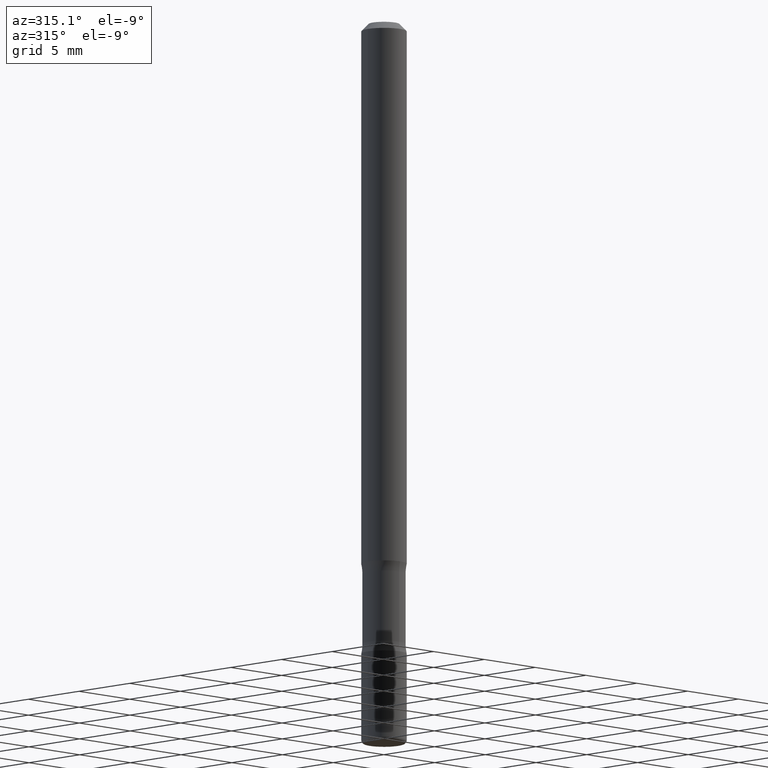
[diagram: clean part render]
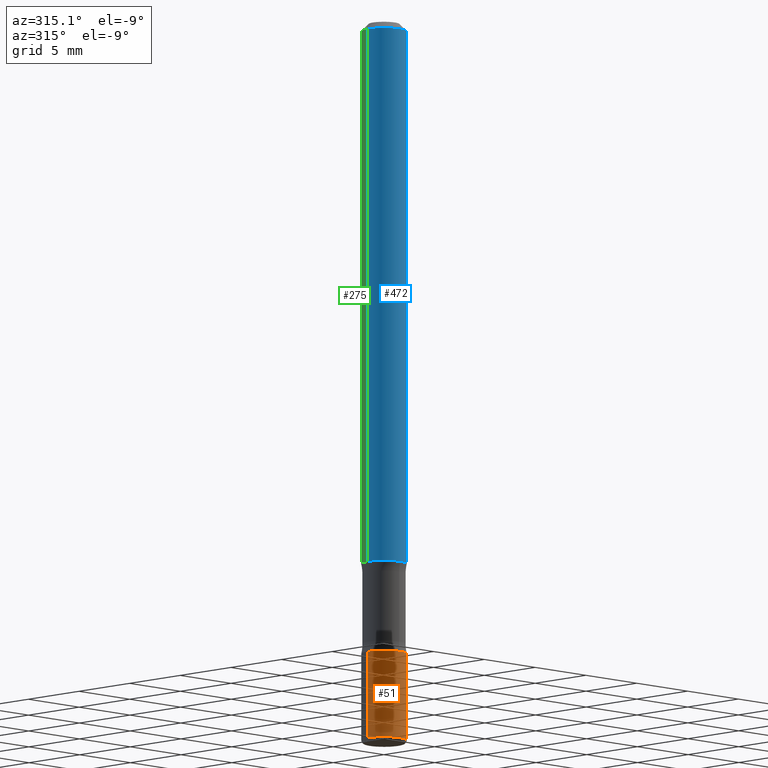
[diagram: same view with three faces highlighted in distinct colors, each labeled with its STEP entity id]
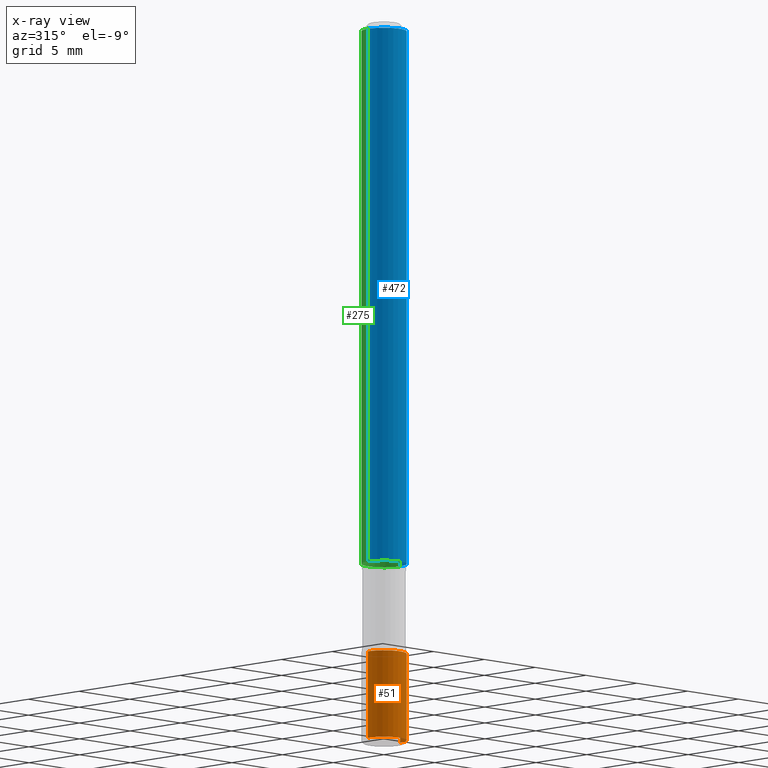
[diagram: x-ray of the same camera — body ghosted, the three highlighted faces saturated]
A machine part, auxiliary view with three faces highlighted in distinct colors.
The next image is the same camera in x-ray (body ghosted, the three faces saturated) — at least one of them is partly hidden behind the body in this view.
Their STEP definitions:

[orange] entity #51 — the highlighted cylindrical surface (edge-blend (fillet) strip) has radius 1.5875 mm, axis along (-0, 0, 1).
#3 = CARTESIAN_POINT ( 'NONE',  ( -0.06250000000000076328, 4.440892098500680396E-16, -3.074334431409353598E-30 ) ) ;
#4 = VECTOR ( 'NONE', #7, 39.37007874015748143 ) ;
#7 = DIRECTION ( 'NONE',  ( -2.445468806185136877E-29, 3.491481338843145188E-15, 1.000000000000000000 ) ) ;
#9 = ORIENTED_EDGE ( 'NONE', *, *, #62, .F. ) ;
#42 = CYLINDRICAL_SURFACE ( 'NONE', #164, 0.06250000000000076328 ) ;
#45 = DIRECTION ( 'NONE',  ( -2.445468806185136597E-29, 3.491481338843145583E-15, 1.000000000000000000 ) ) ;
#51 = ADVANCED_FACE ( 'NONE', ( #134 ), #42, .T. ) ;
#62 = EDGE_CURVE ( 'NONE', #88, #103, #148, .T. ) ;
#73 = DIRECTION ( 'NONE',  ( 1.000000000000000000, -6.982962677686270655E-15, 0.000000000000000000 ) ) ;
#87 = LINE ( 'NONE', #3, #4 ) ;
#88 = VERTEX_POINT ( 'NONE', #523 ) ;
#103 = VERTEX_POINT ( 'NONE', #389 ) ;
#128 = ORIENTED_EDGE ( 'NONE', *, *, #507, .T. ) ;
#134 = FACE_OUTER_BOUND ( 'NONE', #429, .T. ) ;
#148 = CIRCLE ( 'NONE', #162, 0.06250000000000062450 ) ;
#162 = AXIS2_PLACEMENT_3D ( 'NONE', #224, #45, #306 ) ;
#164 = AXIS2_PLACEMENT_3D ( 'NONE', #300, #519, #440 ) ;
#185 = EDGE_CURVE ( 'NONE', #347, #479, #518, .T. ) ;
#223 = CARTESIAN_POINT ( 'NONE',  ( 0.06250000000000076328, -4.364351673553969942E-16, 3.047610484872497355E-30 ) ) ;
#224 = CARTESIAN_POINT ( 'NONE',  ( 4.279570410823987363E-29, -6.110092342975501516E-15, -1.749999999999999112 ) ) ;
#282 = AXIS2_PLACEMENT_3D ( 'NONE', #412, #361, #73 ) ;
#300 = CARTESIAN_POINT ( 'NONE',  ( 0.000000000000000000, 0.000000000000000000, 0.000000000000000000 ) ) ;
#306 = DIRECTION ( 'NONE',  ( 1.000000000000000000, -6.982962677686271444E-15, 0.000000000000000000 ) ) ;
#341 = DIRECTION ( 'NONE',  ( -2.445468806185136877E-29, 3.491481338843145188E-15, 1.000000000000000000 ) ) ;
#342 = EDGE_CURVE ( 'NONE', #347, #88, #87, .T. ) ;
#347 = VERTEX_POINT ( 'NONE', #484 ) ;
#361 = DIRECTION ( 'NONE',  ( -2.445468806185136597E-29, 3.491481338843145583E-15, 1.000000000000000000 ) ) ;
#364 = LINE ( 'NONE', #223, #431 ) ;
#371 = CARTESIAN_POINT ( 'NONE',  ( 0.06250000000000111022, -7.384483031653253552E-15, -1.989999999999998215 ) ) ;
#389 = CARTESIAN_POINT ( 'NONE',  ( 0.06250000000000062450, -6.546527510330897918E-15, -1.749999999999999112 ) ) ;
#410 = ORIENTED_EDGE ( 'NONE', *, *, #342, .F. ) ;
#412 = CARTESIAN_POINT ( 'NONE',  ( 4.866482924308417164E-29, -6.948047864297853205E-15, -1.989999999999998215 ) ) ;
#429 = EDGE_LOOP ( 'NONE', ( #410, #455, #128, #9 ) ) ;
#431 = VECTOR ( 'NONE', #341, 39.37007874015748143 ) ;
#440 = DIRECTION ( 'NONE',  ( 1.000000000000000000, -6.982962677686266711E-15, 4.876176775795936353E-29 ) ) ;
#455 = ORIENTED_EDGE ( 'NONE', *, *, #185, .T. ) ;
#479 = VERTEX_POINT ( 'NONE', #371 ) ;
#484 = CARTESIAN_POINT ( 'NONE',  ( -0.06250000000000111022, -6.503958654447783489E-15, -1.989999999999998215 ) ) ;
#507 = EDGE_CURVE ( 'NONE', #479, #103, #364, .T. ) ;
#518 = CIRCLE ( 'NONE', #282, 0.06250000000000090206 ) ;
#519 = DIRECTION ( 'NONE',  ( -2.445468806185136597E-29, 3.491481338843145583E-15, 1.000000000000000000 ) ) ;
#523 = CARTESIAN_POINT ( 'NONE',  ( -0.06250000000000062450, -6.084980893786609222E-15, -1.749999999999999112 ) ) ;

[blue] entity #472 — the highlighted cylindrical surface (edge-blend (fillet) strip) has radius 1.5875 mm, axis along (-0, 0, 1).
#12 = CARTESIAN_POINT ( 'NONE',  ( 4.890937612370306439E-31, -6.982962677686338448E-17, -0.02000000000000013572 ) ) ;
#15 = EDGE_LOOP ( 'NONE', ( #52, #357, #408, #36 ) ) ;
#23 = CARTESIAN_POINT ( 'NONE',  ( 0.06250000000000073552, -4.364351673553967477E-16, 3.047610484872495604E-30 ) ) ;
#27 = CARTESIAN_POINT ( 'NONE',  ( 3.668203209277701532E-29, -5.237222008264713444E-15, -1.499999999999998668 ) ) ;
#35 = EDGE_CURVE ( 'NONE', #401, #483, #173, .T. ) ;
#36 = ORIENTED_EDGE ( 'NONE', *, *, #222, .F. ) ;
#41 = AXIS2_PLACEMENT_3D ( 'NONE', #27, #316, #55 ) ;
#52 = ORIENTED_EDGE ( 'NONE', *, *, #352, .F. ) ;
#55 = DIRECTION ( 'NONE',  ( 1.000000000000000000, -6.982962677686270655E-15, 0.000000000000000000 ) ) ;
#66 = DIRECTION ( 'NONE',  ( -2.445468806185136597E-29, 3.491481338843145583E-15, 1.000000000000000000 ) ) ;
#94 = LINE ( 'NONE', #391, #190 ) ;
#111 = CARTESIAN_POINT ( 'NONE',  ( 0.06250000000000056899, -4.986107516375879651E-16, -0.02000000000000013572 ) ) ;
#151 = LINE ( 'NONE', #23, #345 ) ;
#173 = CIRCLE ( 'NONE', #41, 0.06250000000000090206 ) ;
#189 = AXIS2_PLACEMENT_3D ( 'NONE', #12, #319, #197 ) ;
#190 = VECTOR ( 'NONE', #437, 39.37007874015748143 ) ;
#196 = DIRECTION ( 'NONE',  ( -2.445468806185136877E-29, 3.491481338843145188E-15, 1.000000000000000000 ) ) ;
#197 = DIRECTION ( 'NONE',  ( 1.000000000000000000, -6.982962677686265922E-15, 0.000000000000000000 ) ) ;
#222 = EDGE_CURVE ( 'NONE', #394, #267, #469, .T. ) ;
#236 = DIRECTION ( 'NONE',  ( 1.000000000000000000, -6.982962677686265922E-15, 4.876176775795935793E-29 ) ) ;
#267 = VERTEX_POINT ( 'NONE', #111 ) ;
#316 = DIRECTION ( 'NONE',  ( -2.445468806185136597E-29, 3.491481338843145583E-15, 1.000000000000000000 ) ) ;
#319 = DIRECTION ( 'NONE',  ( -2.445468806185136597E-29, 3.491481338843145583E-15, 1.000000000000000000 ) ) ;
#327 = FACE_OUTER_BOUND ( 'NONE', #15, .T. ) ;
#330 = CARTESIAN_POINT ( 'NONE',  ( -0.06250000000000056899, 3.666055405785322169E-16, -0.02000000000000013572 ) ) ;
#345 = VECTOR ( 'NONE', #196, 39.37007874015748143 ) ;
#352 = EDGE_CURVE ( 'NONE', #401, #394, #94, .T. ) ;
#357 = ORIENTED_EDGE ( 'NONE', *, *, #35, .T. ) ;
#391 = CARTESIAN_POINT ( 'NONE',  ( -0.06250000000000073552, 4.440892098500678424E-16, -3.074334431409351847E-30 ) ) ;
#394 = VERTEX_POINT ( 'NONE', #330 ) ;
#401 = VERTEX_POINT ( 'NONE', #406 ) ;
#406 = CARTESIAN_POINT ( 'NONE',  ( -0.06250000000000090206, -2.209436607670712344E-15, -1.499999999999998668 ) ) ;
#408 = ORIENTED_EDGE ( 'NONE', *, *, #490, .T. ) ;
#415 = CARTESIAN_POINT ( 'NONE',  ( 0.06250000000000090206, -5.673657175620112213E-15, -1.499999999999998668 ) ) ;
#437 = DIRECTION ( 'NONE',  ( -2.445468806185136877E-29, 3.491481338843145188E-15, 1.000000000000000000 ) ) ;
#456 = CARTESIAN_POINT ( 'NONE',  ( 0.000000000000000000, 0.000000000000000000, 0.000000000000000000 ) ) ;
#469 = CIRCLE ( 'NONE', #189, 0.06250000000000056899 ) ;
#472 = ADVANCED_FACE ( 'NONE', ( #327 ), #501, .T. ) ;
#483 = VERTEX_POINT ( 'NONE', #415 ) ;
#490 = EDGE_CURVE ( 'NONE', #483, #267, #151, .T. ) ;
#501 = CYLINDRICAL_SURFACE ( 'NONE', #534, 0.06250000000000073552 ) ;
#534 = AXIS2_PLACEMENT_3D ( 'NONE', #456, #66, #236 ) ;

[green] entity #275 — the highlighted cylindrical surface (edge-blend (fillet) strip) has radius 1.5875 mm, axis along (-0, 0, 1).
#23 = CARTESIAN_POINT ( 'NONE',  ( 0.06250000000000073552, -4.364351673553967477E-16, 3.047610484872495604E-30 ) ) ;
#54 = CIRCLE ( 'NONE', #252, 0.06250000000000090206 ) ;
#94 = LINE ( 'NONE', #391, #190 ) ;
#107 = CYLINDRICAL_SURFACE ( 'NONE', #289, 0.06250000000000073552 ) ;
#111 = CARTESIAN_POINT ( 'NONE',  ( 0.06250000000000056899, -4.986107516375879651E-16, -0.02000000000000013572 ) ) ;
#151 = LINE ( 'NONE', #23, #345 ) ;
#153 = DIRECTION ( 'NONE',  ( 1.000000000000000000, -6.982962677686270655E-15, 0.000000000000000000 ) ) ;
#169 = DIRECTION ( 'NONE',  ( -2.445468806185136597E-29, 3.491481338843145583E-15, 1.000000000000000000 ) ) ;
#182 = DIRECTION ( 'NONE',  ( 1.000000000000000000, -6.982962677686265922E-15, 4.876176775795935793E-29 ) ) ;
#190 = VECTOR ( 'NONE', #437, 39.37007874015748143 ) ;
#195 = ORIENTED_EDGE ( 'NONE', *, *, #490, .F. ) ;
#196 = DIRECTION ( 'NONE',  ( -2.445468806185136877E-29, 3.491481338843145188E-15, 1.000000000000000000 ) ) ;
#200 = CIRCLE ( 'NONE', #251, 0.06250000000000056899 ) ;
#251 = AXIS2_PLACEMENT_3D ( 'NONE', #559, #169, #353 ) ;
#252 = AXIS2_PLACEMENT_3D ( 'NONE', #461, #498, #153 ) ;
#267 = VERTEX_POINT ( 'NONE', #111 ) ;
#275 = ADVANCED_FACE ( 'NONE', ( #416 ), #107, .T. ) ;
#277 = DIRECTION ( 'NONE',  ( -2.445468806185136597E-29, 3.491481338843145583E-15, 1.000000000000000000 ) ) ;
#280 = CARTESIAN_POINT ( 'NONE',  ( 0.000000000000000000, 0.000000000000000000, 0.000000000000000000 ) ) ;
#289 = AXIS2_PLACEMENT_3D ( 'NONE', #280, #277, #182 ) ;
#308 = EDGE_LOOP ( 'NONE', ( #363, #554, #359, #195 ) ) ;
#330 = CARTESIAN_POINT ( 'NONE',  ( -0.06250000000000056899, 3.666055405785322169E-16, -0.02000000000000013572 ) ) ;
#345 = VECTOR ( 'NONE', #196, 39.37007874015748143 ) ;
#352 = EDGE_CURVE ( 'NONE', #401, #394, #94, .T. ) ;
#353 = DIRECTION ( 'NONE',  ( 1.000000000000000000, -6.982962677686265922E-15, 0.000000000000000000 ) ) ;
#359 = ORIENTED_EDGE ( 'NONE', *, *, #541, .F. ) ;
#363 = ORIENTED_EDGE ( 'NONE', *, *, #430, .T. ) ;
#391 = CARTESIAN_POINT ( 'NONE',  ( -0.06250000000000073552, 4.440892098500678424E-16, -3.074334431409351847E-30 ) ) ;
#394 = VERTEX_POINT ( 'NONE', #330 ) ;
#401 = VERTEX_POINT ( 'NONE', #406 ) ;
#406 = CARTESIAN_POINT ( 'NONE',  ( -0.06250000000000090206, -2.209436607670712344E-15, -1.499999999999998668 ) ) ;
#415 = CARTESIAN_POINT ( 'NONE',  ( 0.06250000000000090206, -5.673657175620112213E-15, -1.499999999999998668 ) ) ;
#416 = FACE_OUTER_BOUND ( 'NONE', #308, .T. ) ;
#430 = EDGE_CURVE ( 'NONE', #483, #401, #54, .T. ) ;
#437 = DIRECTION ( 'NONE',  ( -2.445468806185136877E-29, 3.491481338843145188E-15, 1.000000000000000000 ) ) ;
#461 = CARTESIAN_POINT ( 'NONE',  ( 3.668203209277701532E-29, -5.237222008264713444E-15, -1.499999999999998668 ) ) ;
#483 = VERTEX_POINT ( 'NONE', #415 ) ;
#490 = EDGE_CURVE ( 'NONE', #483, #267, #151, .T. ) ;
#498 = DIRECTION ( 'NONE',  ( -2.445468806185136597E-29, 3.491481338843145583E-15, 1.000000000000000000 ) ) ;
#541 = EDGE_CURVE ( 'NONE', #267, #394, #200, .T. ) ;
#554 = ORIENTED_EDGE ( 'NONE', *, *, #352, .T. ) ;
#559 = CARTESIAN_POINT ( 'NONE',  ( 4.890937612370306439E-31, -6.982962677686338448E-17, -0.02000000000000013572 ) ) ;